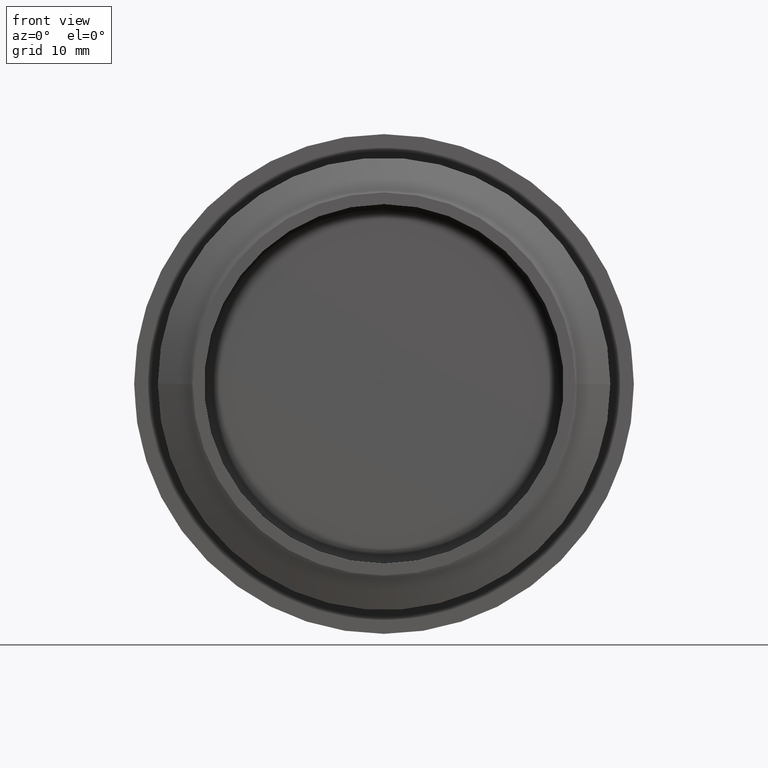
[diagram: clean part render]
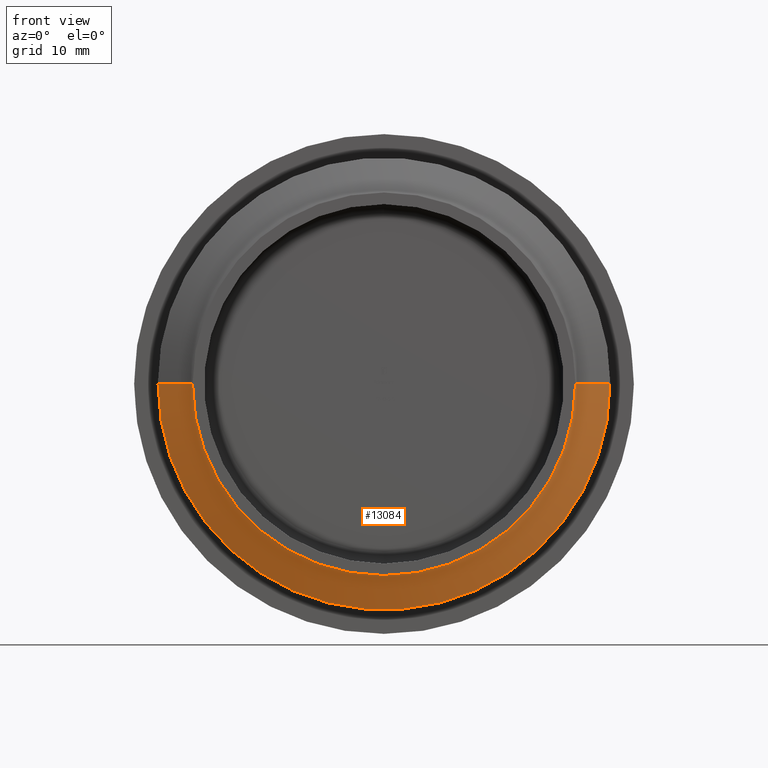
[diagram: same view with one face highlighted and labeled with its STEP entity id]
A machine part, front view. The second image highlights one B-rep face of the part: STEP entity #13084.
In plain terms, the highlighted conical surface has half-angle 67.59 deg.
Its self-contained STEP definition (entity closure, byte-faithful):
#132 = EDGE_CURVE ( 'NONE', #11716, #12942, #9100, .T. ) ;
#211 = LINE ( 'NONE', #3432, #12840 ) ;
#877 = CARTESIAN_POINT ( 'NONE',  ( -16.25000000000001421, 1.299999999999628120, 0.000000000000000000 ) ) ;
#1878 = CARTESIAN_POINT ( 'NONE',  ( -16.25000000000009237, 1.299999999999659428, 0.000000000000000000 ) ) ;
#2482 = CARTESIAN_POINT ( 'NONE',  ( 19.16906198721972032, 2.503776189650413375, 2.347533040530586614E-15 ) ) ;
#2845 = ORIENTED_EDGE ( 'NONE', *, *, #13363, .T. ) ;
#2965 = CARTESIAN_POINT ( 'NONE',  ( -1.361677722148643884E-14, 1.299999999999829736, 0.000000000000000000 ) ) ;
#3432 = CARTESIAN_POINT ( 'NONE',  ( 16.25000000000006395, 1.300000000000000044, 1.990051048614458385E-15 ) ) ;
#3585 = ORIENTED_EDGE ( 'NONE', *, *, #132, .T. ) ;
#3668 = DIRECTION ( 'NONE',  ( -1.047444401652940164E-14, 1.000000000000000000, 0.000000000000000000 ) ) ;
#3693 = LINE ( 'NONE', #1878, #6908 ) ;
#3773 = DIRECTION ( 'NONE',  ( -1.000000000000000000, -1.047506098955225762E-14, 0.000000000000000000 ) ) ;
#4168 = ORIENTED_EDGE ( 'NONE', *, *, #4253, .F. ) ;
#4253 = EDGE_CURVE ( 'NONE', #8498, #12942, #211, .T. ) ;
#4369 = VERTEX_POINT ( 'NONE', #877 ) ;
#4482 = DIRECTION ( 'NONE',  ( 0.9244762069923480041, 0.3812397443932639129, 1.132156827781069780E-16 ) ) ;
#4537 = ORIENTED_EDGE ( 'NONE', *, *, #6171, .T. ) ;
#4643 = DIRECTION ( 'NONE',  ( 1.047444401652940164E-14, -1.000000000000000000, -0.000000000000000000 ) ) ;
#5677 = CIRCLE ( 'NONE', #8781, 16.25000000000000000 ) ;
#6018 = CARTESIAN_POINT ( 'NONE',  ( 16.24999999999998579, 1.299999999999968514, 2.168792044572518161E-15 ) ) ;
#6156 = ORIENTED_EDGE ( 'NONE', *, *, #8961, .T. ) ;
#6171 = EDGE_CURVE ( 'NONE', #13013, #4369, #5677, .T. ) ;
#6233 = AXIS2_PLACEMENT_3D ( 'NONE', #2965, #7466, #10507 ) ;
#6508 = EDGE_LOOP ( 'NONE', ( #4168, #2845, #4537, #6156, #3585 ) ) ;
#6722 = DIRECTION ( 'NONE',  ( -1.000000000000000000, -1.047506098955225762E-14, 0.000000000000000000 ) ) ;
#6791 = DIRECTION ( 'NONE',  ( 1.000000000000000000, 1.047491225591463061E-14, 0.000000000000000000 ) ) ;
#6908 = VECTOR ( 'NONE', #9349, 1000.000000000000227 ) ;
#7292 = DIRECTION ( 'NONE',  ( -1.047444401652940164E-14, 1.000000000000000000, 0.000000000000000000 ) ) ;
#7466 = DIRECTION ( 'NONE',  ( -1.047444401652940164E-14, 1.000000000000000000, 0.000000000000000000 ) ) ;
#8498 = VERTEX_POINT ( 'NONE', #6018 ) ;
#8781 = AXIS2_PLACEMENT_3D ( 'NONE', #9540, #7292, #3773 ) ;
#8802 = CARTESIAN_POINT ( 'NONE',  ( -2.622566352841045357E-14, 2.503776189650212647, 0.000000000000000000 ) ) ;
#8961 = EDGE_CURVE ( 'NONE', #4369, #11716, #3693, .T. ) ;
#9100 = CIRCLE ( 'NONE', #9989, 19.16906198721974874 ) ;
#9307 = CARTESIAN_POINT ( 'NONE',  ( -19.16906198721977717, 2.503776189650011919, 0.000000000000000000 ) ) ;
#9349 = DIRECTION ( 'NONE',  ( -0.9244762069923559977, 0.3812397443932445951, 0.000000000000000000 ) ) ;
#9540 = CARTESIAN_POINT ( 'NONE',  ( -1.361677722148610909E-14, 1.299999999999798206, 0.000000000000000000 ) ) ;
#9989 = AXIS2_PLACEMENT_3D ( 'NONE', #8802, #4643, #6791 ) ;
#10507 = DIRECTION ( 'NONE',  ( -1.000000000000000000, -1.047506098955220713E-14, 0.000000000000000000 ) ) ;
#10820 = CONICAL_SURFACE ( 'NONE', #6233, 16.25000000000007816, 1.179659376938436255 ) ;
#10992 = CARTESIAN_POINT ( 'NONE',  ( -1.361677722148610909E-14, 1.299999999999798206, 0.000000000000000000 ) ) ;
#11716 = VERTEX_POINT ( 'NONE', #9307 ) ;
#11812 = CIRCLE ( 'NONE', #12629, 16.25000000000000000 ) ;
#11827 = FACE_OUTER_BOUND ( 'NONE', #6508, .T. ) ;
#12629 = AXIS2_PLACEMENT_3D ( 'NONE', #10992, #3668, #6722 ) ;
#12840 = VECTOR ( 'NONE', #4482, 1000.000000000000227 ) ;
#12942 = VERTEX_POINT ( 'NONE', #2482 ) ;
#13013 = VERTEX_POINT ( 'NONE', #13630 ) ;
#13084 = ADVANCED_FACE ( 'NONE', ( #11827 ), #10820, .T. ) ;
#13363 = EDGE_CURVE ( 'NONE', #8498, #13013, #11812, .T. ) ;
#13630 = CARTESIAN_POINT ( 'NONE',  ( -4.622231866529366047E-30, 1.299999999999798206, -16.25000000000000000 ) ) ;